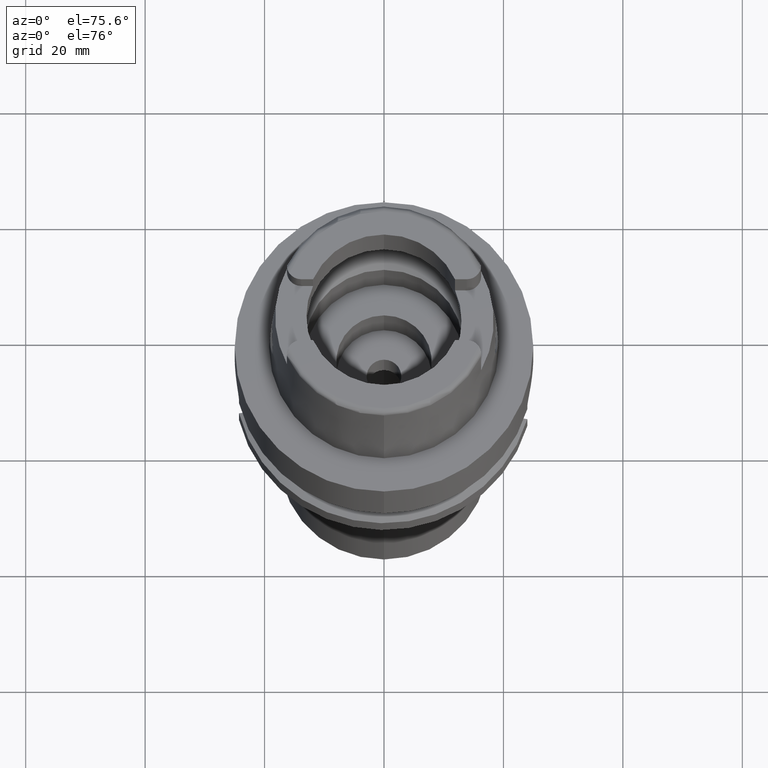
[diagram: clean part render]
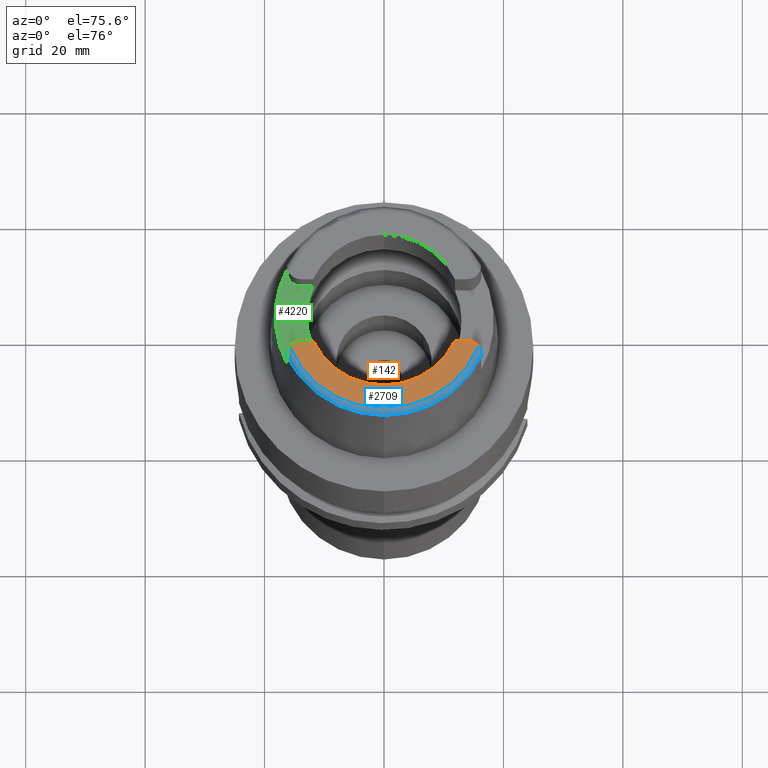
[diagram: same view with three faces highlighted in distinct colors, each labeled with its STEP entity id]
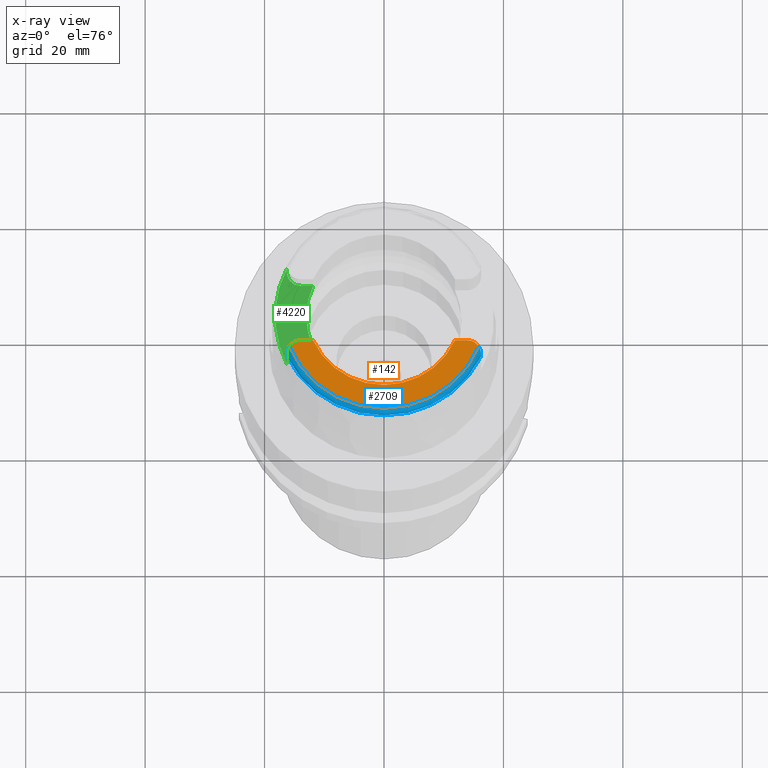
[diagram: x-ray of the same camera — body ghosted, the three highlighted faces saturated]
A machine part, auxiliary view with three faces highlighted in distinct colors.
The next image is the same camera in x-ray (body ghosted, the three faces saturated) — at least one of them is partly hidden behind the body in this view.
Their STEP definitions:

[orange] entity #142 — the highlighted planar face has unit normal (0, 0, 1).
#21 = DIRECTION ( 'NONE',  ( 0.9291773910543710269, -0.3696341109169885564, 0.0000000000000000000 ) ) ;
#83 = VECTOR ( 'NONE', #1946, 1000.000000000000000 ) ;
#99 = VERTEX_POINT ( 'NONE', #2901 ) ;
#142 = ADVANCED_FACE ( 'NONE', ( #323 ), #4197, .T. ) ;
#167 = CIRCLE ( 'NONE', #3252, 2.380000000000000338 ) ;
#250 = CARTESIAN_POINT ( 'NONE',  ( 13.88000000000000078, -5.270000000000000462, 25.00000000000000000 ) ) ;
#294 = DIRECTION ( 'NONE',  ( -0.8240820963562117685, 0.5664703862208080309, 0.0000000000000000000 ) ) ;
#305 = ORIENTED_EDGE ( 'NONE', *, *, #4849, .T. ) ;
#306 = VERTEX_POINT ( 'NONE', #662 ) ;
#323 = FACE_OUTER_BOUND ( 'NONE', #3968, .T. ) ;
#381 = VERTEX_POINT ( 'NONE', #5165 ) ;
#487 = DIRECTION ( 'NONE',  ( 0.0000000000000000000, 0.0000000000000000000, 1.000000000000000000 ) ) ;
#513 = EDGE_CURVE ( 'NONE', #2566, #1532, #167, .T. ) ;
#531 = AXIS2_PLACEMENT_3D ( 'NONE', #1232, #487, #1770 ) ;
#535 = VECTOR ( 'NONE', #1818, 1000.000000000000000 ) ;
#541 = CARTESIAN_POINT ( 'NONE',  ( -11.88390087470999923, -5.270000000000000462, 25.00000000000000000 ) ) ;
#542 = VERTEX_POINT ( 'NONE', #3818 ) ;
#662 = CARTESIAN_POINT ( 'NONE',  ( 0.0000000000000000000, -13.00000000000000000, 25.00000000000000000 ) ) ;
#763 = AXIS2_PLACEMENT_3D ( 'NONE', #825, #5061, #4223 ) ;
#825 = CARTESIAN_POINT ( 'NONE',  ( 0.0000000000000000000, 0.0000000000000000000, 25.00000000000000000 ) ) ;
#1232 = CARTESIAN_POINT ( 'NONE',  ( 0.0000000000000000000, 0.0000000000000000000, 25.00000000000000000 ) ) ;
#1279 = DIRECTION ( 'NONE',  ( 0.0000000000000000000, 1.000000000000000000, 0.0000000000000000000 ) ) ;
#1532 = VERTEX_POINT ( 'NONE', #2773 ) ;
#1568 = CARTESIAN_POINT ( 'NONE',  ( -13.88000000000000078, -7.649999999999999467, 25.00000000000000000 ) ) ;
#1770 = DIRECTION ( 'NONE',  ( 0.0000000000000000000, -1.000000000000000000, 0.0000000000000000000 ) ) ;
#1818 = DIRECTION ( 'NONE',  ( -1.000000000000000000, 1.744231717310999986E-13, 0.0000000000000000000 ) ) ;
#1927 = ORIENTED_EDGE ( 'NONE', *, *, #513, .F. ) ;
#1943 = CIRCLE ( 'NONE', #2906, 17.04875252221999560 ) ;
#1946 = DIRECTION ( 'NONE',  ( -1.000000000000000000, -1.753130858725999982E-13, 0.0000000000000000000 ) ) ;
#2193 = DIRECTION ( 'NONE',  ( 0.0000000000000000000, 0.0000000000000000000, -1.000000000000000000 ) ) ;
#2211 = AXIS2_PLACEMENT_3D ( 'NONE', #2366, #2421, #5306 ) ;
#2366 = CARTESIAN_POINT ( 'NONE',  ( 0.0000000000000000000, 0.0000000000000000000, 25.00000000000000000 ) ) ;
#2421 = DIRECTION ( 'NONE',  ( 0.0000000000000000000, 0.0000000000000000000, 1.000000000000000000 ) ) ;
#2509 = CARTESIAN_POINT ( 'NONE',  ( 13.88000000000000078, -5.270000000000000462, 25.00000000000000000 ) ) ;
#2562 = CIRCLE ( 'NONE', #2211, 13.00000000000000000 ) ;
#2566 = VERTEX_POINT ( 'NONE', #2509 ) ;
#2672 = LINE ( 'NONE', #541, #535 ) ;
#2773 = CARTESIAN_POINT ( 'NONE',  ( 15.84131538932999739, -6.301800480794000237, 25.00000000000000000 ) ) ;
#2862 = DIRECTION ( 'NONE',  ( 0.0000000000000000000, 0.0000000000000000000, -1.000000000000000000 ) ) ;
#2901 = CARTESIAN_POINT ( 'NONE',  ( -11.88390087470999923, -5.270000000000000462, 25.00000000000000000 ) ) ;
#2906 = AXIS2_PLACEMENT_3D ( 'NONE', #3364, #2862, #21 ) ;
#3042 = ORIENTED_EDGE ( 'NONE', *, *, #4569, .F. ) ;
#3229 = EDGE_CURVE ( 'NONE', #1532, #542, #1943, .T. ) ;
#3252 = AXIS2_PLACEMENT_3D ( 'NONE', #4235, #2193, #1279 ) ;
#3267 = CIRCLE ( 'NONE', #531, 13.00000000000000000 ) ;
#3364 = CARTESIAN_POINT ( 'NONE',  ( 0.0000000000000000000, 0.0000000000000000000, 25.00000000000000000 ) ) ;
#3429 = EDGE_CURVE ( 'NONE', #2566, #381, #4903, .T. ) ;
#3665 = ORIENTED_EDGE ( 'NONE', *, *, #4519, .F. ) ;
#3818 = CARTESIAN_POINT ( 'NONE',  ( -15.84131538932999739, -6.301800480795000325, 25.00000000000000000 ) ) ;
#3828 = ORIENTED_EDGE ( 'NONE', *, *, #3229, .F. ) ;
#3905 = CIRCLE ( 'NONE', #4082, 2.379999999999999449 ) ;
#3968 = EDGE_LOOP ( 'NONE', ( #3828, #1927, #5113, #4907, #3042, #305, #3665 ) ) ;
#4082 = AXIS2_PLACEMENT_3D ( 'NONE', #1568, #4549, #294 ) ;
#4141 = CARTESIAN_POINT ( 'NONE',  ( -13.88000000000000078, -5.270000000000000462, 25.00000000000000000 ) ) ;
#4197 = PLANE ( 'NONE',  #763 ) ;
#4223 = DIRECTION ( 'NONE',  ( 1.000000000000000000, 0.0000000000000000000, 0.0000000000000000000 ) ) ;
#4235 = CARTESIAN_POINT ( 'NONE',  ( 13.88000000000000078, -7.649999999999999467, 25.00000000000000000 ) ) ;
#4269 = EDGE_CURVE ( 'NONE', #306, #381, #3267, .T. ) ;
#4519 = EDGE_CURVE ( 'NONE', #542, #5106, #3905, .T. ) ;
#4549 = DIRECTION ( 'NONE',  ( 0.0000000000000000000, 0.0000000000000000000, -1.000000000000000000 ) ) ;
#4569 = EDGE_CURVE ( 'NONE', #99, #306, #2562, .T. ) ;
#4849 = EDGE_CURVE ( 'NONE', #99, #5106, #2672, .T. ) ;
#4903 = LINE ( 'NONE', #250, #83 ) ;
#4907 = ORIENTED_EDGE ( 'NONE', *, *, #4269, .F. ) ;
#5061 = DIRECTION ( 'NONE',  ( 0.0000000000000000000, 0.0000000000000000000, 1.000000000000000000 ) ) ;
#5106 = VERTEX_POINT ( 'NONE', #4141 ) ;
#5113 = ORIENTED_EDGE ( 'NONE', *, *, #3429, .T. ) ;
#5165 = CARTESIAN_POINT ( 'NONE',  ( 11.88390087470999923, -5.270000000000000462, 25.00000000000000000 ) ) ;
#5306 = DIRECTION ( 'NONE',  ( -0.9141462211317679110, -0.4053846153845859779, 0.0000000000000000000 ) ) ;

[blue] entity #2709 — the highlighted toroidal blend (fillet) surface has major radius 17.0488 mm and minor (blend) radius 1 mm.
#21 = DIRECTION ( 'NONE',  ( 0.9291773910543710269, -0.3696341109169885564, 0.0000000000000000000 ) ) ;
#93 = DIRECTION ( 'NONE',  ( -0.0008255998758101713419, -0.9999996591923644429, 0.0000000000000000000 ) ) ;
#189 = ORIENTED_EDGE ( 'NONE', *, *, #1245, .F. ) ;
#192 = FACE_OUTER_BOUND ( 'NONE', #4165, .T. ) ;
#203 = DIRECTION ( 'NONE',  ( 0.0000000000000000000, 0.0000000000000000000, -1.000000000000000000 ) ) ;
#225 = CARTESIAN_POINT ( 'NONE',  ( 16.22521617187605614, -7.243413556453641711, 24.69467769267465229 ) ) ;
#259 = CARTESIAN_POINT ( 'NONE',  ( -15.84131538932999739, -6.301800480795000325, 25.00000000000000000 ) ) ;
#351 = CARTESIAN_POINT ( 'NONE',  ( 16.26000240863000101, -7.831001008556000009, 24.04998242406000131 ) ) ;
#364 = CARTESIAN_POINT ( 'NONE',  ( -16.25999847872000004, -7.831027618096999987, 24.04990900411999988 ) ) ;
#511 = AXIS2_PLACEMENT_3D ( 'NONE', #2303, #203, #93 ) ;
#542 = VERTEX_POINT ( 'NONE', #3818 ) ;
#612 = CARTESIAN_POINT ( 'NONE',  ( 16.26000000000000156, -7.649999999999999467, 24.38968791394999869 ) ) ;
#623 = CARTESIAN_POINT ( 'NONE',  ( -16.26000000000000156, -7.649999999999999467, 24.38968791394999869 ) ) ;
#646 = CARTESIAN_POINT ( 'NONE',  ( 16.26000000000000156, -7.649999999999999467, 24.38968791394999869 ) ) ;
#782 = CARTESIAN_POINT ( 'NONE',  ( 15.96625585798447666, -6.504189616315496636, 24.98176062403130970 ) ) ;
#809 = DIRECTION ( 'NONE',  ( 0.9009559685361676618, -0.4339105239090842447, 0.0000000000000000000 ) ) ;
#863 = AXIS2_PLACEMENT_3D ( 'NONE', #1466, #3150, #2728 ) ;
#937 = CARTESIAN_POINT ( 'NONE',  ( 15.84131538932999739, -6.301800480794000237, 25.00000000000000000 ) ) ;
#968 = CARTESIAN_POINT ( 'NONE',  ( 16.08058035240578576, -6.733786588547443941, 24.92888816074182756 ) ) ;
#995 = CARTESIAN_POINT ( 'NONE',  ( 16.23496557060678569, -7.304328783146006643, 24.65775830273886982 ) ) ;
#1055 = CARTESIAN_POINT ( 'NONE',  ( 16.26000000000000156, -7.756972648942978665, 24.28206343550456481 ) ) ;
#1072 = B_SPLINE_CURVE_WITH_KNOTS ( 'NONE', 3,
 ( #1479, #1055, #4878, #351 ),
 .UNSPECIFIED., .F., .F.,
 ( 4, 4 ),
 ( 0.0000000000000000000, 1.000000000000000000 ),
 .UNSPECIFIED. ) ;
#1086 = CARTESIAN_POINT ( 'NONE',  ( -16.24895309171505531, -7.419467146579105332, 24.58135325267140558 ) ) ;
#1110 = CARTESIAN_POINT ( 'NONE',  ( -15.96834533945843226, -6.501558406581736449, 24.98609907250300566 ) ) ;
#1137 = CARTESIAN_POINT ( 'NONE',  ( -16.12647088039700805, -6.861143724296865365, 24.88072019579882976 ) ) ;
#1165 = CARTESIAN_POINT ( 'NONE',  ( -16.20468902184573778, -7.121967773456011841, 24.76576639495302246 ) ) ;
#1197 = CARTESIAN_POINT ( 'NONE',  ( 15.95142052834785318, -6.477598223787516041, 24.98610333259527749 ) ) ;
#1245 = EDGE_CURVE ( 'NONE', #5262, #4487, #5232, .T. ) ;
#1466 = CARTESIAN_POINT ( 'NONE',  ( 0.0000000000000000000, 0.0000000000000000000, 24.00000000000000000 ) ) ;
#1479 = CARTESIAN_POINT ( 'NONE',  ( 16.26000000000000156, -7.649999999999999467, 24.38968791394999869 ) ) ;
#1532 = VERTEX_POINT ( 'NONE', #2773 ) ;
#1588 = CARTESIAN_POINT ( 'NONE',  ( -16.25344741752731537, -7.471586145477476570, 24.54349424203698504 ) ) ;
#1941 = EDGE_CURVE ( 'NONE', #5072, #2636, #5275, .T. ) ;
#1943 = CIRCLE ( 'NONE', #2906, 17.04875252221999560 ) ;
#1978 = CARTESIAN_POINT ( 'NONE',  ( -16.05117478004920528, -6.674543088104196720, 24.94264063999501246 ) ) ;
#2001 = CARTESIAN_POINT ( 'NONE',  ( -16.14804313198781571, -6.925410722144826003, 24.85478500402255264 ) ) ;
#2087 = VERTEX_POINT ( 'NONE', #612 ) ;
#2102 = EDGE_CURVE ( 'NONE', #4487, #5072, #4592, .T. ) ;
#2198 = B_SPLINE_CURVE_WITH_KNOTS ( 'NONE', 3,
 ( #623, #2800, #4910, #3668, #1588, #1086, #4064, #2358, #1165, #2001, #1137, #3691, #2776, #1978, #4541, #1110, #4932, #259 ),
 .UNSPECIFIED., .F., .F.,
 ( 4, 2, 2, 2, 2, 2, 2, 2, 4 ),
 ( 0.0000000000000000000, 0.1250000000000013323, 0.1875000000000018596, 0.2500000000000023870, 0.5000000000000059952, 0.6250000000000077716, 0.6875000000000076605, 0.7500000000000075495, 1.000000000000000000 ),
 .UNSPECIFIED. ) ;
#2250 = CARTESIAN_POINT ( 'NONE',  ( 16.26000240863000101, -7.831001008556000009, 24.04998242406000131 ) ) ;
#2303 = CARTESIAN_POINT ( 'NONE',  ( 0.0000000000000000000, 0.0000000000000000000, 24.04993752584000077 ) ) ;
#2331 = CARTESIAN_POINT ( 'NONE',  ( 16.23935494077173658, -7.335910855000039810, 24.63767207810957416 ) ) ;
#2358 = CARTESIAN_POINT ( 'NONE',  ( -16.22839670243273602, -7.245355834585446075, 24.69784615082136625 ) ) ;
#2442 = CARTESIAN_POINT ( 'NONE',  ( 15.90587674391616702, -6.399456462585931149, 24.99652583314882293 ) ) ;
#2601 = ORIENTED_EDGE ( 'NONE', *, *, #3288, .F. ) ;
#2636 = VERTEX_POINT ( 'NONE', #5137 ) ;
#2641 = B_SPLINE_CURVE_WITH_KNOTS ( 'NONE', 3,
 ( #937, #5018, #2442, #1197, #782, #2887, #2743, #968, #4454, #3523, #2714, #2768, #225, #995, #2331, #4789, #5206, #646 ),
 .UNSPECIFIED., .F., .F.,
 ( 4, 2, 2, 2, 2, 2, 2, 2, 4 ),
 ( 0.0000000000000000000, 0.1250000000000024980, 0.1875000000000033862, 0.2500000000000042744, 0.5000000000000049960, 0.6250000000000059952, 0.6875000000000065503, 0.7500000000000069944, 1.000000000000000000 ),
 .UNSPECIFIED. ) ;
#2709 = ADVANCED_FACE ( 'NONE', ( #192 ), #3251, .T. ) ;
#2714 = CARTESIAN_POINT ( 'NONE',  ( 16.20091124494847890, -7.119143384442200073, 24.76404916784038690 ) ) ;
#2728 = DIRECTION ( 'NONE',  ( -0.0008255998758100714869, -0.9999996591923645539, 0.0000000000000000000 ) ) ;
#2743 = CARTESIAN_POINT ( 'NONE',  ( 16.00841666764784677, -6.584475460020354554, 24.96566545704684614 ) ) ;
#2768 = CARTESIAN_POINT ( 'NONE',  ( 16.21967615664472362, -7.212592958069226512, 24.71249920125599076 ) ) ;
#2773 = CARTESIAN_POINT ( 'NONE',  ( 15.84131538932999739, -6.301800480794000237, 25.00000000000000000 ) ) ;
#2776 = CARTESIAN_POINT ( 'NONE',  ( -16.07769908709886408, -6.735869355588694596, 24.92418080404586433 ) ) ;
#2800 = CARTESIAN_POINT ( 'NONE',  ( -16.26000000000000156, -7.611323203165828666, 24.42860038482855600 ) ) ;
#2862 = DIRECTION ( 'NONE',  ( 0.0000000000000000000, 0.0000000000000000000, -1.000000000000000000 ) ) ;
#2887 = CARTESIAN_POINT ( 'NONE',  ( 15.99515335809924999, -6.558454667888120149, 24.97133812347776782 ) ) ;
#2906 = AXIS2_PLACEMENT_3D ( 'NONE', #3364, #2862, #21 ) ;
#2967 = CARTESIAN_POINT ( 'NONE',  ( 0.0000000000000000000, 0.0000000000000000000, 24.04993752584000077 ) ) ;
#3150 = DIRECTION ( 'NONE',  ( 0.0000000000000000000, 0.0000000000000000000, 1.000000000000000000 ) ) ;
#3159 = ORIENTED_EDGE ( 'NONE', *, *, #4938, .F. ) ;
#3229 = EDGE_CURVE ( 'NONE', #1532, #542, #1943, .T. ) ;
#3251 = TOROIDAL_SURFACE ( 'NONE', #863, 17.04875252221999560, 1.000000000000000000 ) ;
#3288 = EDGE_CURVE ( 'NONE', #1532, #2087, #2641, .T. ) ;
#3364 = CARTESIAN_POINT ( 'NONE',  ( 0.0000000000000000000, 0.0000000000000000000, 25.00000000000000000 ) ) ;
#3496 = CARTESIAN_POINT ( 'NONE',  ( -16.26000000000000156, -7.649999999999999467, 24.38968791394999869 ) ) ;
#3523 = CARTESIAN_POINT ( 'NONE',  ( 16.18554076064014069, -7.055521886518535624, 24.79586306668381113 ) ) ;
#3668 = CARTESIAN_POINT ( 'NONE',  ( -16.25516810167747650, -7.496549958051125451, 24.52447694836610026 ) ) ;
#3691 = CARTESIAN_POINT ( 'NONE',  ( -16.09036084666226429, -6.766916573822468806, 24.91401646659289426 ) ) ;
#3711 = AXIS2_PLACEMENT_3D ( 'NONE', #2967, #4267, #809 ) ;
#3818 = CARTESIAN_POINT ( 'NONE',  ( -15.84131538932999739, -6.301800480795000325, 25.00000000000000000 ) ) ;
#3821 = ORIENTED_EDGE ( 'NONE', *, *, #3229, .T. ) ;
#3925 = CARTESIAN_POINT ( 'NONE',  ( -16.26000000000000156, -7.817328874526307203, 24.16879002927901965 ) ) ;
#4005 = CARTESIAN_POINT ( 'NONE',  ( -16.25999847872000004, -7.831027618096999987, 24.04990900411999988 ) ) ;
#4064 = CARTESIAN_POINT ( 'NONE',  ( -16.24635612508560101, -7.393772195971192396, 24.59922458510065368 ) ) ;
#4165 = EDGE_LOOP ( 'NONE', ( #5456, #189, #4723, #2601, #3821, #3159, #4721 ) ) ;
#4267 = DIRECTION ( 'NONE',  ( 0.0000000000000000000, 0.0000000000000000000, -1.000000000000000000 ) ) ;
#4331 = CARTESIAN_POINT ( 'NONE',  ( 0.0000000000000000000, -18.04750486565000145, 24.04993752584000077 ) ) ;
#4454 = CARTESIAN_POINT ( 'NONE',  ( 16.12967067124100140, -6.861665314422641160, 24.88364652657551090 ) ) ;
#4487 = VERTEX_POINT ( 'NONE', #4331 ) ;
#4541 = CARTESIAN_POINT ( 'NONE',  ( -16.03650687744163150, -6.642597593092698816, 24.95134675376047895 ) ) ;
#4592 = CIRCLE ( 'NONE', #511, 18.04750486564999434 ) ;
#4721 = ORIENTED_EDGE ( 'NONE', *, *, #1941, .F. ) ;
#4723 = ORIENTED_EDGE ( 'NONE', *, *, #5373, .F. ) ;
#4789 = CARTESIAN_POINT ( 'NONE',  ( 16.25642365100313569, -7.476984764354552837, 24.54393345577900121 ) ) ;
#4878 = CARTESIAN_POINT ( 'NONE',  ( 16.26000000000000156, -7.817306318461644032, 24.16882827220789665 ) ) ;
#4910 = CARTESIAN_POINT ( 'NONE',  ( -16.25906981596299872, -7.568094461879278256, 24.46716170229239751 ) ) ;
#4932 = CARTESIAN_POINT ( 'NONE',  ( -15.90697457532997561, -6.397319259819720827, 24.99999999999999645 ) ) ;
#4938 = EDGE_CURVE ( 'NONE', #2636, #542, #2198, .T. ) ;
#5018 = CARTESIAN_POINT ( 'NONE',  ( 15.87413174455778275, -6.349540612442188703, 25.00000000000000355 ) ) ;
#5072 = VERTEX_POINT ( 'NONE', #364 ) ;
#5137 = CARTESIAN_POINT ( 'NONE',  ( -16.26000000000000156, -7.649999999999999467, 24.38968791394999869 ) ) ;
#5205 = CARTESIAN_POINT ( 'NONE',  ( -16.26000000000000156, -7.756986335160641843, 24.28204966588901925 ) ) ;
#5206 = CARTESIAN_POINT ( 'NONE',  ( 16.26000000000000156, -7.572638004034046411, 24.46752130921451851 ) ) ;
#5232 = CIRCLE ( 'NONE', #3711, 18.04750486565000855 ) ;
#5262 = VERTEX_POINT ( 'NONE', #2250 ) ;
#5275 = B_SPLINE_CURVE_WITH_KNOTS ( 'NONE', 3,
 ( #4005, #3925, #5205, #3496 ),
 .UNSPECIFIED., .F., .F.,
 ( 4, 4 ),
 ( 0.0000000000000000000, 1.000000000000000000 ),
 .UNSPECIFIED. ) ;
#5373 = EDGE_CURVE ( 'NONE', #2087, #5262, #1072, .T. ) ;
#5456 = ORIENTED_EDGE ( 'NONE', *, *, #2102, .F. ) ;

[green] entity #4220 — the highlighted planar face has unit normal (0, 0, 1).
#10 = VERTEX_POINT ( 'NONE', #3117 ) ;
#161 = DIRECTION ( 'NONE',  ( -1.000000000000000000, 0.0000000000000000000, 0.0000000000000000000 ) ) ;
#180 = VECTOR ( 'NONE', #4560, 1000.000000000000000 ) ;
#194 = DIRECTION ( 'NONE',  ( 0.0000000000000000000, 0.0000000000000000000, 1.000000000000000000 ) ) ;
#209 = CARTESIAN_POINT ( 'NONE',  ( 0.0000000000000000000, 0.0000000000000000000, 20.50000000000000000 ) ) ;
#370 = ORIENTED_EDGE ( 'NONE', *, *, #2820, .F. ) ;
#450 = ORIENTED_EDGE ( 'NONE', *, *, #4357, .F. ) ;
#652 = EDGE_CURVE ( 'NONE', #4363, #3529, #2286, .T. ) ;
#694 = VECTOR ( 'NONE', #3321, 1000.000000000000114 ) ;
#734 = CARTESIAN_POINT ( 'NONE',  ( -13.88000000000000078, -7.649999999999999467, 20.50000000000000000 ) ) ;
#892 = CARTESIAN_POINT ( 'NONE',  ( -13.88000000000000078, 5.270000000000000462, 20.50000000000000000 ) ) ;
#973 = DIRECTION ( 'NONE',  ( -0.9141462211317679110, 0.4053846153845859779, 0.0000000000000000000 ) ) ;
#1053 = AXIS2_PLACEMENT_3D ( 'NONE', #734, #4525, #3681 ) ;
#1114 = ORIENTED_EDGE ( 'NONE', *, *, #652, .F. ) ;
#1243 = CARTESIAN_POINT ( 'NONE',  ( -16.26000000000000156, -7.649999999999999467, 20.50000000000000000 ) ) ;
#1252 = EDGE_LOOP ( 'NONE', ( #4714, #450, #4324, #370, #5199, #2085, #3132, #1114 ) ) ;
#1255 = EDGE_CURVE ( 'NONE', #1683, #4363, #3448, .T. ) ;
#1288 = DIRECTION ( 'NONE',  ( 1.000000000000000000, 0.0000000000000000000, 0.0000000000000000000 ) ) ;
#1323 = CIRCLE ( 'NONE', #1774, 2.380000000000000338 ) ;
#1494 = AXIS2_PLACEMENT_3D ( 'NONE', #209, #2774, #973 ) ;
#1611 = CARTESIAN_POINT ( 'NONE',  ( -11.88390087470999923, -5.270000000000000462, 20.50000000000000000 ) ) ;
#1683 = VERTEX_POINT ( 'NONE', #4985 ) ;
#1774 = AXIS2_PLACEMENT_3D ( 'NONE', #3995, #194, #161 ) ;
#1852 = CARTESIAN_POINT ( 'NONE',  ( -16.26000000000000156, 8.231833128876001382, 20.50000000000000000 ) ) ;
#1895 = EDGE_CURVE ( 'NONE', #5473, #4258, #3023, .T. ) ;
#1995 = LINE ( 'NONE', #2851, #180 ) ;
#2085 = ORIENTED_EDGE ( 'NONE', *, *, #4088, .F. ) ;
#2190 = VERTEX_POINT ( 'NONE', #3292 ) ;
#2203 = CARTESIAN_POINT ( 'NONE',  ( -16.26000158539999774, 8.231826053340999039, 20.50000000000000000 ) ) ;
#2261 = DIRECTION ( 'NONE',  ( 2.724861989728963355E-06, -0.9999999999962875252, -3.053072012145963250E-14 ) ) ;
#2286 = CIRCLE ( 'NONE', #1494, 13.00000000000000000 ) ;
#2499 = DIRECTION ( 'NONE',  ( 1.000000000000000000, 1.744231717310999986E-13, 0.0000000000000000000 ) ) ;
#2656 = EDGE_CURVE ( 'NONE', #2657, #2190, #4747, .T. ) ;
#2657 = VERTEX_POINT ( 'NONE', #1852 ) ;
#2774 = DIRECTION ( 'NONE',  ( 0.0000000000000000000, 0.0000000000000000000, 1.000000000000000000 ) ) ;
#2820 = EDGE_CURVE ( 'NONE', #4258, #2657, #5396, .T. ) ;
#2851 = CARTESIAN_POINT ( 'NONE',  ( -11.88390087470999923, -5.270000000000000462, 20.50000000000000000 ) ) ;
#3023 = LINE ( 'NONE', #1243, #694 ) ;
#3117 = CARTESIAN_POINT ( 'NONE',  ( -13.88000000000000078, -5.270000000000000462, 20.50000000000000000 ) ) ;
#3132 = ORIENTED_EDGE ( 'NONE', *, *, #3637, .F. ) ;
#3292 = CARTESIAN_POINT ( 'NONE',  ( -16.26000000000000156, 7.649999999999999467, 20.50000000000000000 ) ) ;
#3321 = DIRECTION ( 'NONE',  ( 6.403803029344968857E-07, -0.9999999999997949418, 3.053026158947983985E-14 ) ) ;
#3448 = LINE ( 'NONE', #892, #5144 ) ;
#3486 = CARTESIAN_POINT ( 'NONE',  ( 0.0000000000000000000, 0.0000000000000000000, 20.50000000000000000 ) ) ;
#3529 = VERTEX_POINT ( 'NONE', #1611 ) ;
#3637 = EDGE_CURVE ( 'NONE', #3529, #10, #1995, .T. ) ;
#3681 = DIRECTION ( 'NONE',  ( 0.0000000000000000000, 1.000000000000000000, 0.0000000000000000000 ) ) ;
#3705 = AXIS2_PLACEMENT_3D ( 'NONE', #3486, #4808, #5194 ) ;
#3854 = CARTESIAN_POINT ( 'NONE',  ( -16.25999962739999916, -8.231834791749999880, 20.50000000000000000 ) ) ;
#3995 = CARTESIAN_POINT ( 'NONE',  ( -13.88000000000000078, 7.649999999999999467, 20.50000000000000000 ) ) ;
#4088 = EDGE_CURVE ( 'NONE', #10, #5473, #5240, .T. ) ;
#4153 = VECTOR ( 'NONE', #2261, 1000.000000000000114 ) ;
#4190 = CARTESIAN_POINT ( 'NONE',  ( 0.0000000000000000000, 0.0000000000000000000, 20.50000000000000000 ) ) ;
#4217 = FACE_OUTER_BOUND ( 'NONE', #1252, .T. ) ;
#4220 = ADVANCED_FACE ( 'NONE', ( #4217 ), #5111, .T. ) ;
#4258 = VERTEX_POINT ( 'NONE', #3854 ) ;
#4324 = ORIENTED_EDGE ( 'NONE', *, *, #2656, .F. ) ;
#4357 = EDGE_CURVE ( 'NONE', #2190, #1683, #1323, .T. ) ;
#4363 = VERTEX_POINT ( 'NONE', #4749 ) ;
#4525 = DIRECTION ( 'NONE',  ( 0.0000000000000000000, 0.0000000000000000000, 1.000000000000000000 ) ) ;
#4560 = DIRECTION ( 'NONE',  ( -1.000000000000000000, 1.744231717310999986E-13, 0.0000000000000000000 ) ) ;
#4714 = ORIENTED_EDGE ( 'NONE', *, *, #1255, .F. ) ;
#4747 = LINE ( 'NONE', #2203, #4153 ) ;
#4749 = CARTESIAN_POINT ( 'NONE',  ( -11.88390087470999923, 5.270000000000000462, 20.50000000000000000 ) ) ;
#4808 = DIRECTION ( 'NONE',  ( 0.0000000000000000000, 0.0000000000000000000, -1.000000000000000000 ) ) ;
#4985 = CARTESIAN_POINT ( 'NONE',  ( -13.88000000000000078, 5.270000000000000462, 20.50000000000000000 ) ) ;
#5064 = AXIS2_PLACEMENT_3D ( 'NONE', #4190, #5169, #1288 ) ;
#5111 = PLANE ( 'NONE',  #5064 ) ;
#5144 = VECTOR ( 'NONE', #2499, 1000.000000000000000 ) ;
#5169 = DIRECTION ( 'NONE',  ( 0.0000000000000000000, 0.0000000000000000000, 1.000000000000000000 ) ) ;
#5194 = DIRECTION ( 'NONE',  ( -0.8921810005753487705, -0.4516780515061248891, 0.0000000000000000000 ) ) ;
#5199 = ORIENTED_EDGE ( 'NONE', *, *, #1895, .F. ) ;
#5240 = CIRCLE ( 'NONE', #1053, 2.380000000000000338 ) ;
#5293 = CARTESIAN_POINT ( 'NONE',  ( -16.26000000000000156, -7.649999999999999467, 20.50000000000000000 ) ) ;
#5396 = CIRCLE ( 'NONE', #3705, 18.22500141733000589 ) ;
#5473 = VERTEX_POINT ( 'NONE', #5293 ) ;